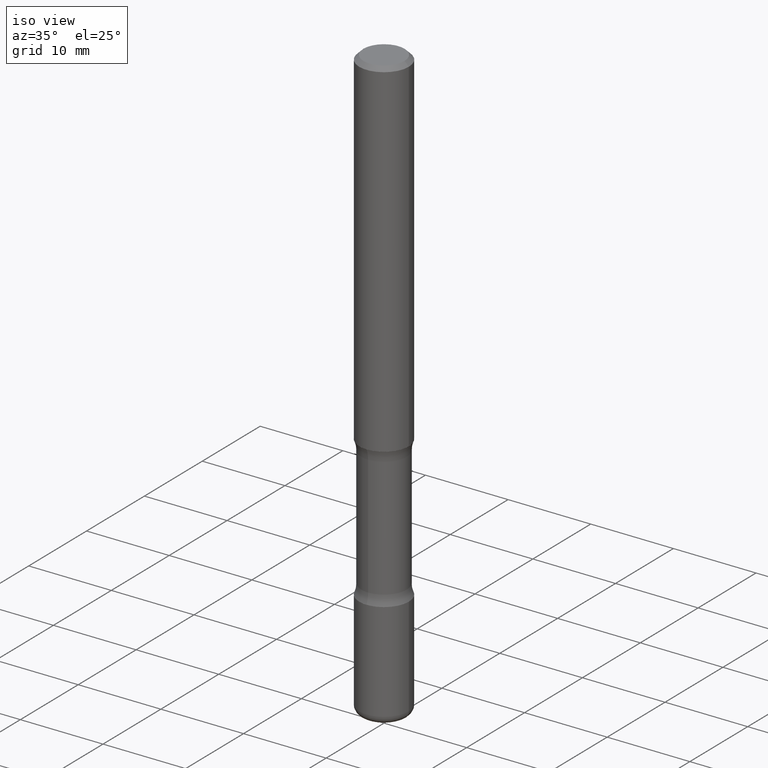
[diagram: clean part render]
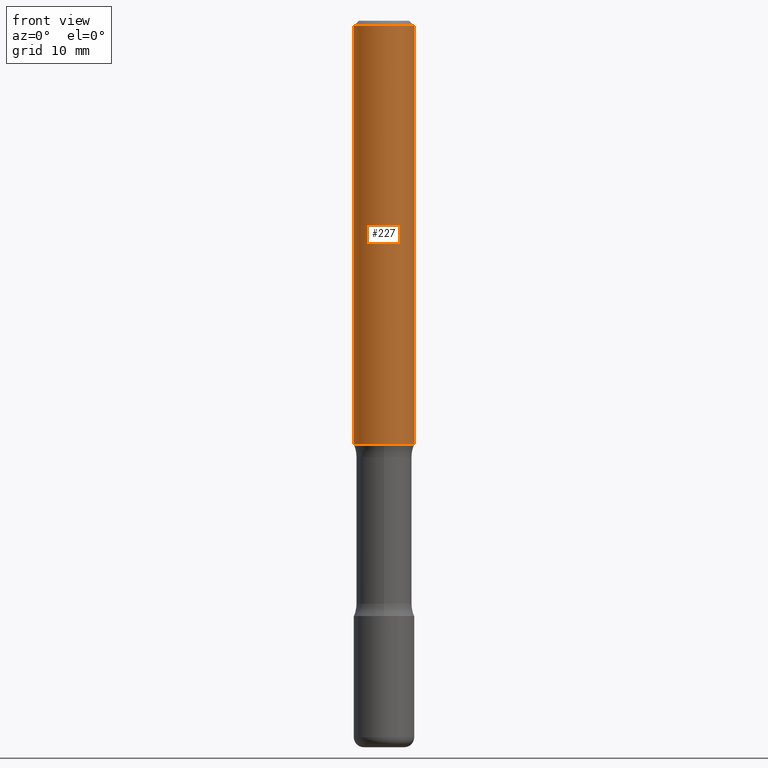
[diagram: tour spotlight — one face highlighted and labeled with its STEP entity id]
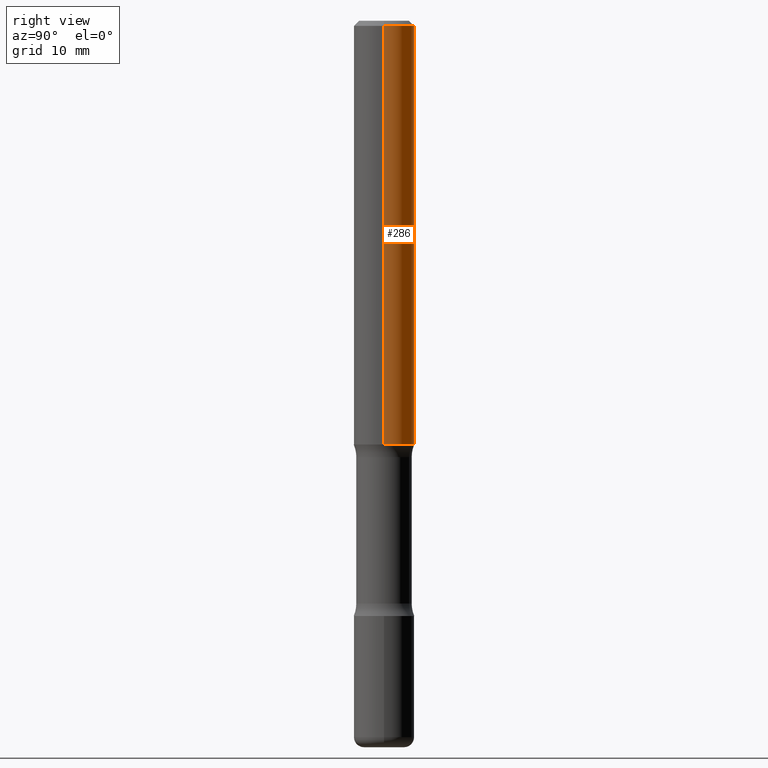
[diagram: tour spotlight — one face highlighted and labeled with its STEP entity id]
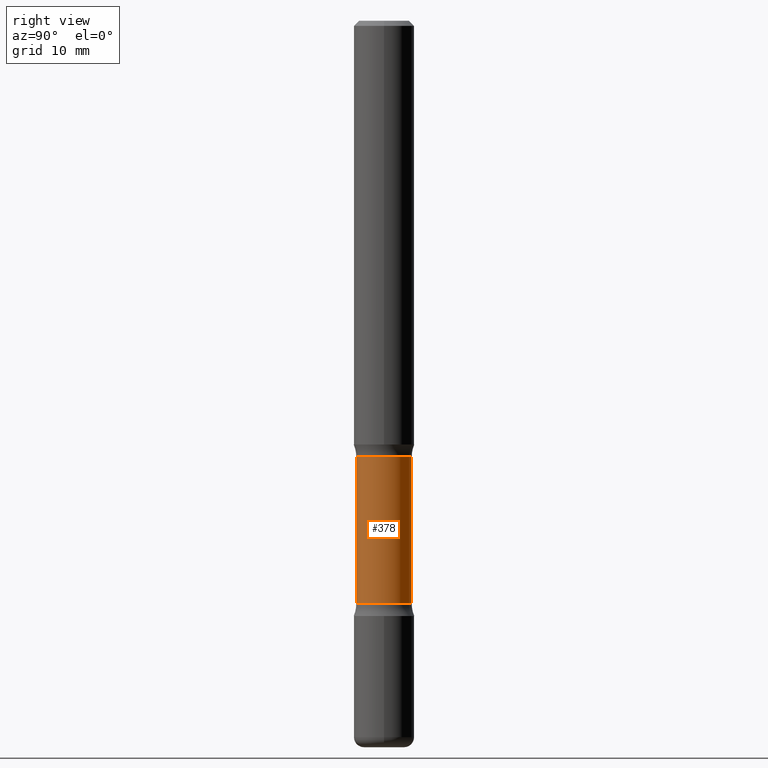
[diagram: tour spotlight — one face highlighted and labeled with its STEP entity id]
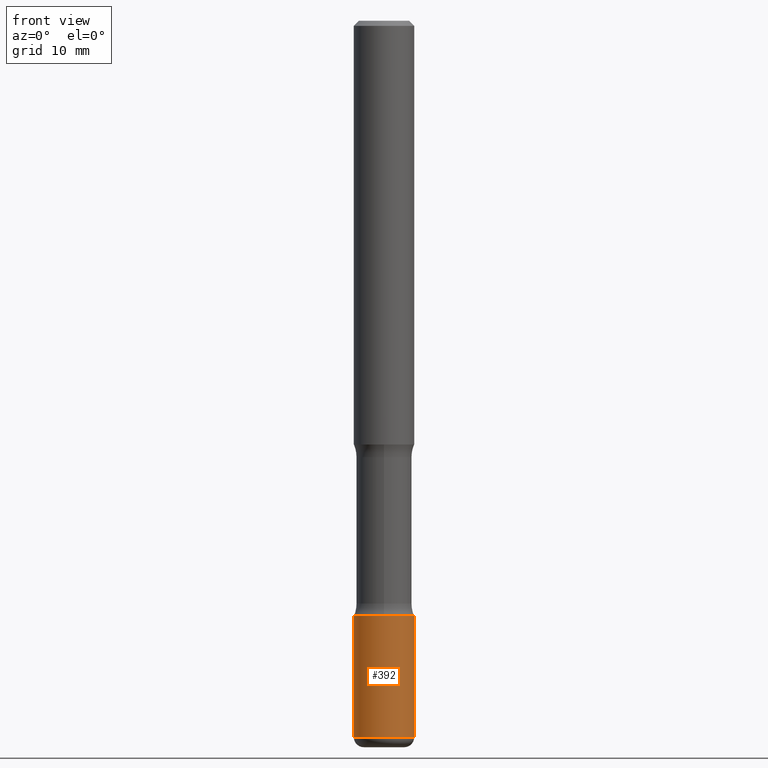
[diagram: tour spotlight — one face highlighted and labeled with its STEP entity id]
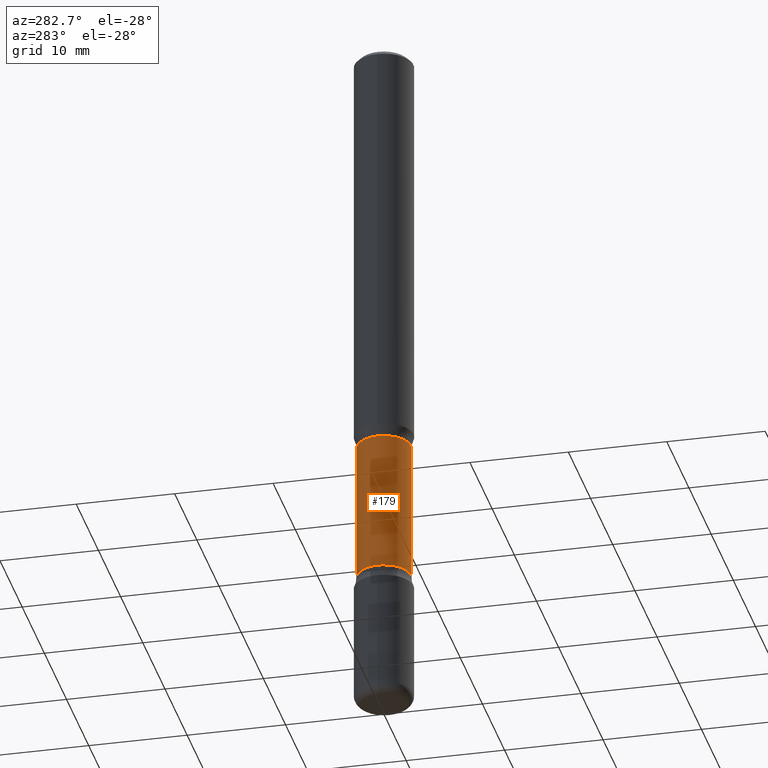
[diagram: tour spotlight — one face highlighted and labeled with its STEP entity id]
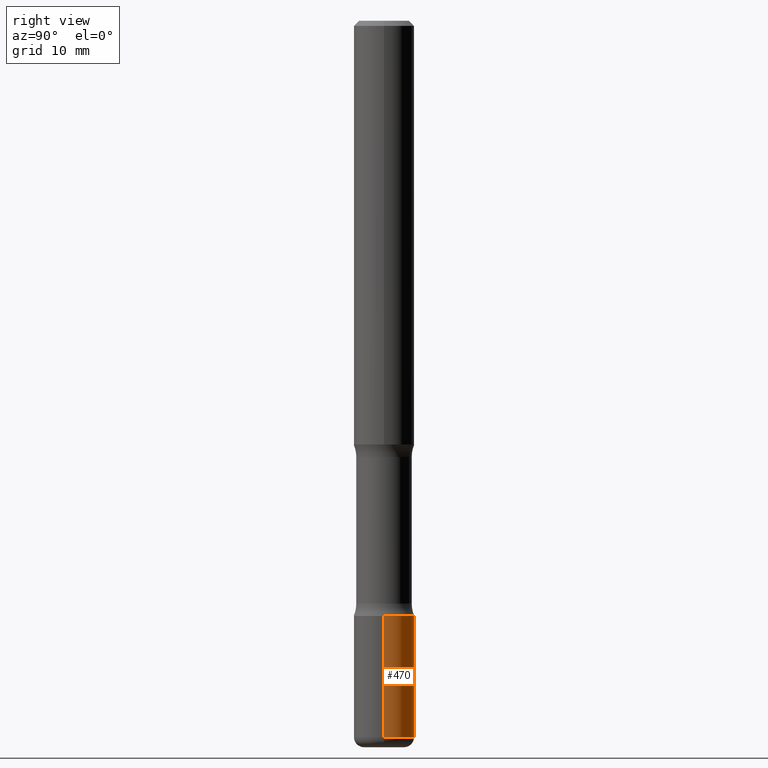
[diagram: tour spotlight — one face highlighted and labeled with its STEP entity id]
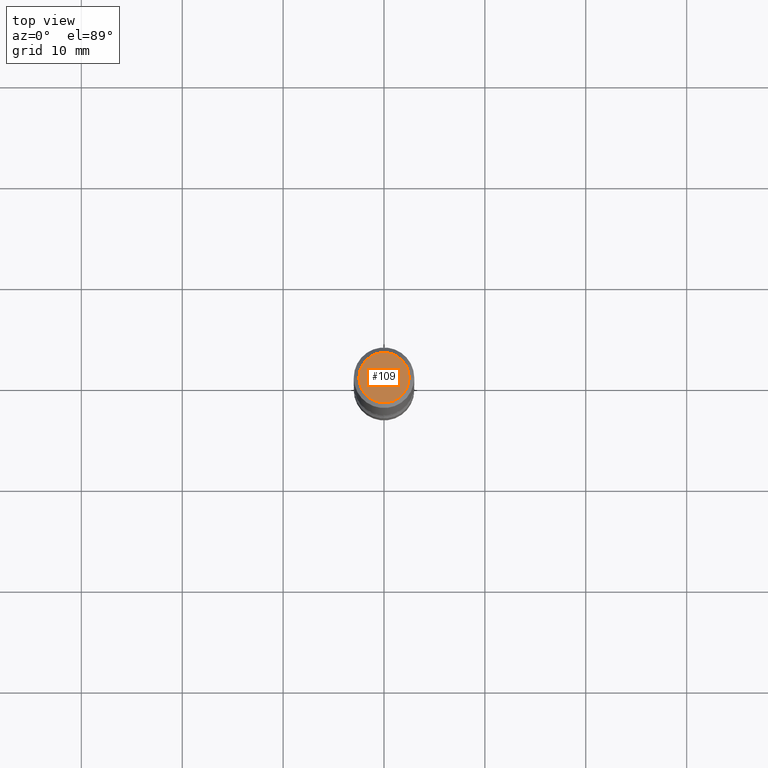
[diagram: tour spotlight — one face highlighted and labeled with its STEP entity id]
A machine part: a face-by-face anatomy tour. The part has 20 B-rep faces; the first image is the clean iso view, then the 7 largest visible faces are spotlighted one at a time (largest first), each with its STEP entity span.

Face 1 — front view, entity #227. In plain terms, the highlighted cylindrical surface (edge-blend (fillet) strip) has radius 2.9997 mm, axis along (-0, 0, 1).
Definition (entity closure, byte-faithful):
#17 = CARTESIAN_POINT ( 'NONE',  ( -0.1181000000000009265, 8.391509709326849024E-16, -5.809262341591088625E-30 ) ) ;
#21 = CARTESIAN_POINT ( 'NONE',  ( -0.1181000000000010514, -2.082346039344310577E-15, -1.653499999999998638 ) ) ;
#36 = ORIENTED_EDGE ( 'NONE', *, *, #353, .F. ) ;
#40 = CARTESIAN_POINT ( 'NONE',  ( 0.1181000000000007877, -8.800544403136861623E-16, -0.02000000000000000042 ) ) ;
#56 = DIRECTION ( 'NONE',  ( -2.445468806185136877E-29, 3.491481338843145188E-15, 1.000000000000000000 ) ) ;
#59 = VECTOR ( 'NONE', #358, 39.37007874015748143 ) ;
#64 = LINE ( 'NONE', #17, #59 ) ;
#72 = DIRECTION ( 'NONE',  ( 1.000000000000000000, -6.982962677686266711E-15, 0.000000000000000000 ) ) ;
#84 = DIRECTION ( 'NONE',  ( 1.000000000000000000, -6.982962677686268288E-15, 0.000000000000000000 ) ) ;
#87 = EDGE_CURVE ( 'NONE', #205, #414, #440, .T. ) ;
#115 = EDGE_CURVE ( 'NONE', #465, #205, #275, .T. ) ;
#130 = DIRECTION ( 'NONE',  ( -2.445468806185136597E-29, 3.491481338843145583E-15, 1.000000000000000000 ) ) ;
#148 = CARTESIAN_POINT ( 'NONE',  ( 4.890937612370273159E-31, -6.982962677686291609E-17, -0.02000000000000000042 ) ) ;
#158 = ORIENTED_EDGE ( 'NONE', *, *, #115, .T. ) ;
#168 = VECTOR ( 'NONE', #56, 39.37007874015748143 ) ;
#188 = CIRCLE ( 'NONE', #463, 0.1181000000000007877 ) ;
#205 = VERTEX_POINT ( 'NONE', #306 ) ;
#212 = CYLINDRICAL_SURFACE ( 'NONE', #284, 0.1181000000000009265 ) ;
#224 = CARTESIAN_POINT ( 'NONE',  ( 0.1181000000000009265, -8.246878922347544749E-16, 5.758764772215045282E-30 ) ) ;
#227 = ADVANCED_FACE ( 'NONE', ( #489 ), #212, .T. ) ;
#243 = ORIENTED_EDGE ( 'NONE', *, *, #87, .T. ) ;
#270 = EDGE_LOOP ( 'NONE', ( #36, #158, #243, #546 ) ) ;
#275 = CIRCLE ( 'NONE', #350, 0.1181000000000010514 ) ;
#276 = DIRECTION ( 'NONE',  ( -2.445468806185136597E-29, 3.491481338843145583E-15, 1.000000000000000000 ) ) ;
#284 = AXIS2_PLACEMENT_3D ( 'NONE', #483, #441, #342 ) ;
#295 = EDGE_CURVE ( 'NONE', #372, #414, #188, .T. ) ;
#306 = CARTESIAN_POINT ( 'NONE',  ( 0.1181000000000010514, -6.597852286011891701E-15, -1.653499999999998638 ) ) ;
#342 = DIRECTION ( 'NONE',  ( 1.000000000000000000, -6.982962677686265922E-15, 4.876176775795935793E-29 ) ) ;
#350 = AXIS2_PLACEMENT_3D ( 'NONE', #466, #130, #84 ) ;
#353 = EDGE_CURVE ( 'NONE', #465, #372, #64, .T. ) ;
#358 = DIRECTION ( 'NONE',  ( -2.445468806185136877E-29, 3.491481338843145188E-15, 1.000000000000000000 ) ) ;
#372 = VERTEX_POINT ( 'NONE', #545 ) ;
#414 = VERTEX_POINT ( 'NONE', #40 ) ;
#440 = LINE ( 'NONE', #224, #168 ) ;
#441 = DIRECTION ( 'NONE',  ( -2.445468806185136597E-29, 3.491481338843145583E-15, 1.000000000000000000 ) ) ;
#463 = AXIS2_PLACEMENT_3D ( 'NONE', #148, #276, #72 ) ;
#465 = VERTEX_POINT ( 'NONE', #21 ) ;
#466 = CARTESIAN_POINT ( 'NONE',  ( 4.043582671027119838E-29, -5.773164393777136338E-15, -1.653499999999998638 ) ) ;
#483 = CARTESIAN_POINT ( 'NONE',  ( 0.000000000000000000, 0.000000000000000000, 0.000000000000000000 ) ) ;
#489 = FACE_OUTER_BOUND ( 'NONE', #270, .T. ) ;
#545 = CARTESIAN_POINT ( 'NONE',  ( -0.1181000000000007877, 7.548582654578905850E-16, -0.02000000000000000042 ) ) ;
#546 = ORIENTED_EDGE ( 'NONE', *, *, #295, .F. ) ;

Face 2 — right view, entity #286. In plain terms, the highlighted cylindrical surface (edge-blend (fillet) strip) has radius 2.9997 mm, axis along (-0, 0, 1).
Definition (entity closure, byte-faithful):
#6 = ORIENTED_EDGE ( 'NONE', *, *, #87, .F. ) ;
#11 = DIRECTION ( 'NONE',  ( 1.000000000000000000, -6.982962677686266711E-15, 0.000000000000000000 ) ) ;
#13 = CARTESIAN_POINT ( 'NONE',  ( 4.043582671027119838E-29, -5.773164393777136338E-15, -1.653499999999998638 ) ) ;
#17 = CARTESIAN_POINT ( 'NONE',  ( -0.1181000000000009265, 8.391509709326849024E-16, -5.809262341591088625E-30 ) ) ;
#19 = CIRCLE ( 'NONE', #377, 0.1181000000000010514 ) ;
#21 = CARTESIAN_POINT ( 'NONE',  ( -0.1181000000000010514, -2.082346039344310577E-15, -1.653499999999998638 ) ) ;
#40 = CARTESIAN_POINT ( 'NONE',  ( 0.1181000000000007877, -8.800544403136861623E-16, -0.02000000000000000042 ) ) ;
#56 = DIRECTION ( 'NONE',  ( -2.445468806185136877E-29, 3.491481338843145188E-15, 1.000000000000000000 ) ) ;
#59 = VECTOR ( 'NONE', #358, 39.37007874015748143 ) ;
#64 = LINE ( 'NONE', #17, #59 ) ;
#87 = EDGE_CURVE ( 'NONE', #205, #414, #440, .T. ) ;
#90 = DIRECTION ( 'NONE',  ( 1.000000000000000000, -6.982962677686268288E-15, 0.000000000000000000 ) ) ;
#100 = CIRCLE ( 'NONE', #197, 0.1181000000000007877 ) ;
#116 = CYLINDRICAL_SURFACE ( 'NONE', #253, 0.1181000000000009265 ) ;
#146 = FACE_OUTER_BOUND ( 'NONE', #211, .T. ) ;
#168 = VECTOR ( 'NONE', #56, 39.37007874015748143 ) ;
#184 = DIRECTION ( 'NONE',  ( -2.445468806185136597E-29, 3.491481338843145583E-15, 1.000000000000000000 ) ) ;
#197 = AXIS2_PLACEMENT_3D ( 'NONE', #220, #184, #11 ) ;
#205 = VERTEX_POINT ( 'NONE', #306 ) ;
#211 = EDGE_LOOP ( 'NONE', ( #474, #507, #344, #6 ) ) ;
#220 = CARTESIAN_POINT ( 'NONE',  ( 4.890937612370273159E-31, -6.982962677686291609E-17, -0.02000000000000000042 ) ) ;
#224 = CARTESIAN_POINT ( 'NONE',  ( 0.1181000000000009265, -8.246878922347544749E-16, 5.758764772215045282E-30 ) ) ;
#231 = EDGE_CURVE ( 'NONE', #414, #372, #100, .T. ) ;
#253 = AXIS2_PLACEMENT_3D ( 'NONE', #449, #317, #455 ) ;
#286 = ADVANCED_FACE ( 'NONE', ( #146 ), #116, .T. ) ;
#306 = CARTESIAN_POINT ( 'NONE',  ( 0.1181000000000010514, -6.597852286011891701E-15, -1.653499999999998638 ) ) ;
#317 = DIRECTION ( 'NONE',  ( -2.445468806185136597E-29, 3.491481338843145583E-15, 1.000000000000000000 ) ) ;
#344 = ORIENTED_EDGE ( 'NONE', *, *, #231, .F. ) ;
#353 = EDGE_CURVE ( 'NONE', #465, #372, #64, .T. ) ;
#358 = DIRECTION ( 'NONE',  ( -2.445468806185136877E-29, 3.491481338843145188E-15, 1.000000000000000000 ) ) ;
#372 = VERTEX_POINT ( 'NONE', #545 ) ;
#377 = AXIS2_PLACEMENT_3D ( 'NONE', #13, #448, #90 ) ;
#414 = VERTEX_POINT ( 'NONE', #40 ) ;
#424 = EDGE_CURVE ( 'NONE', #205, #465, #19, .T. ) ;
#440 = LINE ( 'NONE', #224, #168 ) ;
#448 = DIRECTION ( 'NONE',  ( -2.445468806185136597E-29, 3.491481338843145583E-15, 1.000000000000000000 ) ) ;
#449 = CARTESIAN_POINT ( 'NONE',  ( 0.000000000000000000, 0.000000000000000000, 0.000000000000000000 ) ) ;
#455 = DIRECTION ( 'NONE',  ( 1.000000000000000000, -6.982962677686265922E-15, 4.876176775795935793E-29 ) ) ;
#465 = VERTEX_POINT ( 'NONE', #21 ) ;
#474 = ORIENTED_EDGE ( 'NONE', *, *, #424, .T. ) ;
#507 = ORIENTED_EDGE ( 'NONE', *, *, #353, .T. ) ;
#545 = CARTESIAN_POINT ( 'NONE',  ( -0.1181000000000007877, 7.548582654578905850E-16, -0.02000000000000000042 ) ) ;

Face 3 — right view, entity #378. In plain terms, the highlighted cylindrical surface (edge-blend (fillet) strip) has radius 2.7445 mm, axis along (0, -0, -1).
Definition (entity closure, byte-faithful):
#10 = AXIS2_PLACEMENT_3D ( 'NONE', #500, #410, #189 ) ;
#31 = AXIS2_PLACEMENT_3D ( 'NONE', #533, #103, #58 ) ;
#33 = VECTOR ( 'NONE', #290, 39.37007874015748143 ) ;
#37 = CARTESIAN_POINT ( 'NONE',  ( 7.545091173240708723E-16, 0.1080499999999901678, -2.834599999999999120 ) ) ;
#41 = VECTOR ( 'NONE', #374, 39.37007874015748143 ) ;
#44 = EDGE_CURVE ( 'NONE', #172, #160, #421, .T. ) ;
#50 = AXIS2_PLACEMENT_3D ( 'NONE', #495, #75, #269 ) ;
#58 = DIRECTION ( 'NONE',  ( 6.982962677686265922E-15, 1.000000000000000000, -2.528318365260770920E-15 ) ) ;
#71 = EDGE_CURVE ( 'NONE', #160, #550, #77, .T. ) ;
#75 = DIRECTION ( 'NONE',  ( 2.515355941959131519E-29, -3.391398982686043410E-15, -1.000000000000000000 ) ) ;
#77 = CIRCLE ( 'NONE', #31, 0.1080500000000000071 ) ;
#103 = DIRECTION ( 'NONE',  ( 2.515355941959131519E-29, -3.391398982686043410E-15, -1.000000000000000000 ) ) ;
#122 = ORIENTED_EDGE ( 'NONE', *, *, #467, .T. ) ;
#160 = VERTEX_POINT ( 'NONE', #471 ) ;
#172 = VERTEX_POINT ( 'NONE', #348 ) ;
#182 = CARTESIAN_POINT ( 'NONE',  ( -7.757508110979757408E-16, -0.1080500000000060301, -1.702607000519272828 ) ) ;
#189 = DIRECTION ( 'NONE',  ( 6.982962677686265922E-15, 1.000000000000000000, -2.528318365260770525E-15 ) ) ;
#235 = VERTEX_POINT ( 'NONE', #182 ) ;
#236 = ORIENTED_EDGE ( 'NONE', *, *, #71, .F. ) ;
#269 = DIRECTION ( 'NONE',  ( 6.982962677686265922E-15, 1.000000000000000000, -5.056636730521541050E-15 ) ) ;
#273 = EDGE_LOOP ( 'NONE', ( #282, #122, #236, #554 ) ) ;
#282 = ORIENTED_EDGE ( 'NONE', *, *, #309, .T. ) ;
#290 = DIRECTION ( 'NONE',  ( 2.515355941959131799E-29, -3.391398982686043015E-15, -1.000000000000000000 ) ) ;
#292 = CIRCLE ( 'NONE', #10, 0.1080500000000000210 ) ;
#309 = EDGE_CURVE ( 'NONE', #172, #235, #292, .T. ) ;
#348 = CARTESIAN_POINT ( 'NONE',  ( 7.545091173240424733E-16, 0.1080499999999940119, -1.702607000519273273 ) ) ;
#370 = LINE ( 'NONE', #412, #33 ) ;
#374 = DIRECTION ( 'NONE',  ( 2.515355941959131799E-29, -3.391398982686043015E-15, -1.000000000000000000 ) ) ;
#378 = ADVANCED_FACE ( 'NONE', ( #446 ), #407, .T. ) ;
#407 = CYLINDRICAL_SURFACE ( 'NONE', #50, 0.1080500000000000210 ) ;
#410 = DIRECTION ( 'NONE',  ( 2.515355941959131519E-29, -3.391398982686043410E-15, -1.000000000000000000 ) ) ;
#412 = CARTESIAN_POINT ( 'NONE',  ( -7.412768086591444935E-16, -0.1080500000000098743, -2.834599999999998232 ) ) ;
#421 = LINE ( 'NONE', #37, #41 ) ;
#446 = FACE_OUTER_BOUND ( 'NONE', #273, .T. ) ;
#467 = EDGE_CURVE ( 'NONE', #235, #550, #370, .T. ) ;
#471 = CARTESIAN_POINT ( 'NONE',  ( 7.545091173240566728E-16, 0.1080499999999920691, -2.273692999480724897 ) ) ;
#495 = CARTESIAN_POINT ( 'NONE',  ( 6.967694114101516369E-29, -9.845730853203571031E-15, -2.834599999999998676 ) ) ;
#500 = CARTESIAN_POINT ( 'NONE',  ( 4.120328796601531988E-29, -6.006690946356916109E-15, -1.702607000519273051 ) ) ;
#533 = CARTESIAN_POINT ( 'NONE',  ( 5.556813357458885632E-29, -7.943471422261023875E-15, -2.273692999480724453 ) ) ;
#550 = VERTEX_POINT ( 'NONE', #556 ) ;
#554 = ORIENTED_EDGE ( 'NONE', *, *, #44, .F. ) ;
#556 = CARTESIAN_POINT ( 'NONE',  ( -7.757508110979601608E-16, -0.1080500000000079452, -2.273692999480724009 ) ) ;

Face 4 — front view, entity #392. In plain terms, the highlighted cylindrical surface (edge-blend (fillet) strip) has radius 2.9997 mm, axis along (-0, 0, 1).
Definition (entity closure, byte-faithful):
#1 = ORIENTED_EDGE ( 'NONE', *, *, #16, .T. ) ;
#16 = EDGE_CURVE ( 'NONE', #522, #451, #472, .T. ) ;
#22 = CYLINDRICAL_SURFACE ( 'NONE', #518, 0.1181000000000001077 ) ;
#30 = DIRECTION ( 'NONE',  ( -2.445468806185136597E-29, 3.491481338843145583E-15, 1.000000000000000000 ) ) ;
#47 = DIRECTION ( 'NONE',  ( -2.445468806185136877E-29, 3.491481338843145188E-15, 1.000000000000000000 ) ) ;
#53 = ORIENTED_EDGE ( 'NONE', *, *, #373, .T. ) ;
#61 = LINE ( 'NONE', #314, #367 ) ;
#66 = AXIS2_PLACEMENT_3D ( 'NONE', #509, #123, #297 ) ;
#88 = VECTOR ( 'NONE', #47, 39.37007874015748143 ) ;
#98 = VERTEX_POINT ( 'NONE', #494 ) ;
#123 = DIRECTION ( 'NONE',  ( -2.445468806185136597E-29, 3.491481338843145583E-15, 1.000000000000000000 ) ) ;
#137 = VERTEX_POINT ( 'NONE', #288 ) ;
#151 = DIRECTION ( 'NONE',  ( -2.445468806185136877E-29, 3.491481338843145188E-15, 1.000000000000000000 ) ) ;
#153 = EDGE_LOOP ( 'NONE', ( #459, #1, #53, #496 ) ) ;
#159 = CARTESIAN_POINT ( 'NONE',  ( -0.1181000000000003020, -8.920237667401677951E-15, -2.795199999999999019 ) ) ;
#225 = DIRECTION ( 'NONE',  ( 1.000000000000000000, -6.982962677686269077E-15, 0.000000000000000000 ) ) ;
#232 = CIRCLE ( 'NONE', #444, 0.1181000000000000660 ) ;
#238 = FACE_OUTER_BOUND ( 'NONE', #153, .T. ) ;
#249 = EDGE_CURVE ( 'NONE', #522, #98, #430, .T. ) ;
#279 = DIRECTION ( 'NONE',  ( 1.000000000000000000, -6.982962677686266711E-15, 4.876176775795935793E-29 ) ) ;
#288 = CARTESIAN_POINT ( 'NONE',  ( 0.1181000000000000660, -8.934700746099602364E-15, -2.322799999999998644 ) ) ;
#297 = DIRECTION ( 'NONE',  ( 1.000000000000000000, -6.982962677686265133E-15, 0.000000000000000000 ) ) ;
#310 = DIRECTION ( 'NONE',  ( -2.445468806185136597E-29, 3.491481338843145583E-15, 1.000000000000000000 ) ) ;
#314 = CARTESIAN_POINT ( 'NONE',  ( 0.1181000000000001077, -8.246878922347488542E-16, 5.758764772215005345E-30 ) ) ;
#324 = CARTESIAN_POINT ( 'NONE',  ( 0.000000000000000000, 0.000000000000000000, 0.000000000000000000 ) ) ;
#367 = VECTOR ( 'NONE', #151, 39.37007874015748143 ) ;
#368 = CARTESIAN_POINT ( 'NONE',  ( 5.680334943006831795E-29, -8.110012853864854101E-15, -2.322799999999998644 ) ) ;
#373 = EDGE_CURVE ( 'NONE', #451, #137, #61, .T. ) ;
#392 = ADVANCED_FACE ( 'NONE', ( #238 ), #22, .T. ) ;
#395 = EDGE_CURVE ( 'NONE', #98, #137, #232, .T. ) ;
#430 = LINE ( 'NONE', #442, #88 ) ;
#436 = CARTESIAN_POINT ( 'NONE',  ( 0.1181000000000003020, -1.058407653056910836E-14, -2.795199999999999019 ) ) ;
#442 = CARTESIAN_POINT ( 'NONE',  ( -0.1181000000000001077, 8.391509709326790846E-16, -5.809262341591049389E-30 ) ) ;
#444 = AXIS2_PLACEMENT_3D ( 'NONE', #368, #310, #225 ) ;
#451 = VERTEX_POINT ( 'NONE', #436 ) ;
#459 = ORIENTED_EDGE ( 'NONE', *, *, #249, .F. ) ;
#472 = CIRCLE ( 'NONE', #66, 0.1181000000000001354 ) ;
#494 = CARTESIAN_POINT ( 'NONE',  ( -0.1181000000000000660, -8.095549775166928111E-15, -2.322799999999998644 ) ) ;
#496 = ORIENTED_EDGE ( 'NONE', *, *, #395, .F. ) ;
#509 = CARTESIAN_POINT ( 'NONE',  ( 6.835574407048691801E-29, -9.759388638334358515E-15, -2.795199999999999019 ) ) ;
#518 = AXIS2_PLACEMENT_3D ( 'NONE', #324, #30, #279 ) ;
#522 = VERTEX_POINT ( 'NONE', #159 ) ;

Face 5 — auxiliary view, entity #179. In plain terms, the highlighted cylindrical surface (edge-blend (fillet) strip) has radius 2.7445 mm, axis along (0, -0, -1).
Definition (entity closure, byte-faithful):
#2 = AXIS2_PLACEMENT_3D ( 'NONE', #12, #393, #352 ) ;
#12 = CARTESIAN_POINT ( 'NONE',  ( 6.967694114101516369E-29, -9.845730853203571031E-15, -2.834599999999998676 ) ) ;
#32 = ORIENTED_EDGE ( 'NONE', *, *, #252, .F. ) ;
#33 = VECTOR ( 'NONE', #290, 39.37007874015748143 ) ;
#37 = CARTESIAN_POINT ( 'NONE',  ( 7.545091173240708723E-16, 0.1080499999999901678, -2.834599999999999120 ) ) ;
#41 = VECTOR ( 'NONE', #374, 39.37007874015748143 ) ;
#44 = EDGE_CURVE ( 'NONE', #172, #160, #421, .T. ) ;
#92 = DIRECTION ( 'NONE',  ( 6.982962677686265922E-15, 1.000000000000000000, -2.528318365260770525E-15 ) ) ;
#94 = ORIENTED_EDGE ( 'NONE', *, *, #102, .T. ) ;
#102 = EDGE_CURVE ( 'NONE', #235, #172, #126, .T. ) ;
#106 = CARTESIAN_POINT ( 'NONE',  ( 4.120328796601531988E-29, -6.006690946356916109E-15, -1.702607000519273051 ) ) ;
#108 = DIRECTION ( 'NONE',  ( 2.515355941959131519E-29, -3.391398982686043410E-15, -1.000000000000000000 ) ) ;
#126 = CIRCLE ( 'NONE', #173, 0.1080500000000000210 ) ;
#160 = VERTEX_POINT ( 'NONE', #471 ) ;
#162 = CIRCLE ( 'NONE', #405, 0.1080500000000000071 ) ;
#172 = VERTEX_POINT ( 'NONE', #348 ) ;
#173 = AXIS2_PLACEMENT_3D ( 'NONE', #106, #473, #92 ) ;
#179 = ADVANCED_FACE ( 'NONE', ( #219 ), #261, .T. ) ;
#182 = CARTESIAN_POINT ( 'NONE',  ( -7.757508110979757408E-16, -0.1080500000000060301, -1.702607000519272828 ) ) ;
#187 = EDGE_LOOP ( 'NONE', ( #341, #94, #355, #32 ) ) ;
#219 = FACE_OUTER_BOUND ( 'NONE', #187, .T. ) ;
#235 = VERTEX_POINT ( 'NONE', #182 ) ;
#252 = EDGE_CURVE ( 'NONE', #550, #160, #162, .T. ) ;
#261 = CYLINDRICAL_SURFACE ( 'NONE', #2, 0.1080500000000000210 ) ;
#272 = CARTESIAN_POINT ( 'NONE',  ( 5.556813357458885632E-29, -7.943471422261023875E-15, -2.273692999480724453 ) ) ;
#290 = DIRECTION ( 'NONE',  ( 2.515355941959131799E-29, -3.391398982686043015E-15, -1.000000000000000000 ) ) ;
#341 = ORIENTED_EDGE ( 'NONE', *, *, #467, .F. ) ;
#348 = CARTESIAN_POINT ( 'NONE',  ( 7.545091173240424733E-16, 0.1080499999999940119, -1.702607000519273273 ) ) ;
#352 = DIRECTION ( 'NONE',  ( 6.982962677686265922E-15, 1.000000000000000000, -5.056636730521541050E-15 ) ) ;
#355 = ORIENTED_EDGE ( 'NONE', *, *, #44, .T. ) ;
#370 = LINE ( 'NONE', #412, #33 ) ;
#374 = DIRECTION ( 'NONE',  ( 2.515355941959131799E-29, -3.391398982686043015E-15, -1.000000000000000000 ) ) ;
#393 = DIRECTION ( 'NONE',  ( 2.515355941959131519E-29, -3.391398982686043410E-15, -1.000000000000000000 ) ) ;
#405 = AXIS2_PLACEMENT_3D ( 'NONE', #272, #108, #541 ) ;
#412 = CARTESIAN_POINT ( 'NONE',  ( -7.412768086591444935E-16, -0.1080500000000098743, -2.834599999999998232 ) ) ;
#421 = LINE ( 'NONE', #37, #41 ) ;
#467 = EDGE_CURVE ( 'NONE', #235, #550, #370, .T. ) ;
#471 = CARTESIAN_POINT ( 'NONE',  ( 7.545091173240566728E-16, 0.1080499999999920691, -2.273692999480724897 ) ) ;
#473 = DIRECTION ( 'NONE',  ( 2.515355941959131519E-29, -3.391398982686043410E-15, -1.000000000000000000 ) ) ;
#541 = DIRECTION ( 'NONE',  ( 6.982962677686265922E-15, 1.000000000000000000, -2.528318365260770920E-15 ) ) ;
#550 = VERTEX_POINT ( 'NONE', #556 ) ;
#556 = CARTESIAN_POINT ( 'NONE',  ( -7.757508110979601608E-16, -0.1080500000000079452, -2.273692999480724009 ) ) ;

Face 6 — right view, entity #470. In plain terms, the highlighted cylindrical surface (edge-blend (fillet) strip) has radius 2.9997 mm, axis along (-0, 0, 1).
Definition (entity closure, byte-faithful):
#18 = ORIENTED_EDGE ( 'NONE', *, *, #249, .T. ) ;
#47 = DIRECTION ( 'NONE',  ( -2.445468806185136877E-29, 3.491481338843145188E-15, 1.000000000000000000 ) ) ;
#54 = DIRECTION ( 'NONE',  ( 1.000000000000000000, -6.982962677686269077E-15, 0.000000000000000000 ) ) ;
#61 = LINE ( 'NONE', #314, #367 ) ;
#88 = VECTOR ( 'NONE', #47, 39.37007874015748143 ) ;
#98 = VERTEX_POINT ( 'NONE', #494 ) ;
#137 = VERTEX_POINT ( 'NONE', #288 ) ;
#147 = ORIENTED_EDGE ( 'NONE', *, *, #454, .T. ) ;
#151 = DIRECTION ( 'NONE',  ( -2.445468806185136877E-29, 3.491481338843145188E-15, 1.000000000000000000 ) ) ;
#152 = CIRCLE ( 'NONE', #557, 0.1181000000000000660 ) ;
#159 = CARTESIAN_POINT ( 'NONE',  ( -0.1181000000000003020, -8.920237667401677951E-15, -2.795199999999999019 ) ) ;
#165 = EDGE_CURVE ( 'NONE', #137, #98, #152, .T. ) ;
#199 = CARTESIAN_POINT ( 'NONE',  ( 5.680334943006831795E-29, -8.110012853864854101E-15, -2.322799999999998644 ) ) ;
#216 = ORIENTED_EDGE ( 'NONE', *, *, #373, .F. ) ;
#230 = DIRECTION ( 'NONE',  ( -2.445468806185136597E-29, 3.491481338843145583E-15, 1.000000000000000000 ) ) ;
#241 = FACE_OUTER_BOUND ( 'NONE', #257, .T. ) ;
#249 = EDGE_CURVE ( 'NONE', #522, #98, #430, .T. ) ;
#257 = EDGE_LOOP ( 'NONE', ( #147, #18, #329, #216 ) ) ;
#267 = AXIS2_PLACEMENT_3D ( 'NONE', #394, #230, #479 ) ;
#288 = CARTESIAN_POINT ( 'NONE',  ( 0.1181000000000000660, -8.934700746099602364E-15, -2.322799999999998644 ) ) ;
#314 = CARTESIAN_POINT ( 'NONE',  ( 0.1181000000000001077, -8.246878922347488542E-16, 5.758764772215005345E-30 ) ) ;
#321 = DIRECTION ( 'NONE',  ( -2.445468806185136597E-29, 3.491481338843145583E-15, 1.000000000000000000 ) ) ;
#329 = ORIENTED_EDGE ( 'NONE', *, *, #165, .F. ) ;
#367 = VECTOR ( 'NONE', #151, 39.37007874015748143 ) ;
#373 = EDGE_CURVE ( 'NONE', #451, #137, #61, .T. ) ;
#376 = CARTESIAN_POINT ( 'NONE',  ( 0.000000000000000000, 0.000000000000000000, 0.000000000000000000 ) ) ;
#394 = CARTESIAN_POINT ( 'NONE',  ( 6.835574407048691801E-29, -9.759388638334358515E-15, -2.795199999999999019 ) ) ;
#416 = AXIS2_PLACEMENT_3D ( 'NONE', #376, #321, #502 ) ;
#430 = LINE ( 'NONE', #442, #88 ) ;
#436 = CARTESIAN_POINT ( 'NONE',  ( 0.1181000000000003020, -1.058407653056910836E-14, -2.795199999999999019 ) ) ;
#438 = DIRECTION ( 'NONE',  ( -2.445468806185136597E-29, 3.491481338843145583E-15, 1.000000000000000000 ) ) ;
#442 = CARTESIAN_POINT ( 'NONE',  ( -0.1181000000000001077, 8.391509709326790846E-16, -5.809262341591049389E-30 ) ) ;
#451 = VERTEX_POINT ( 'NONE', #436 ) ;
#454 = EDGE_CURVE ( 'NONE', #451, #522, #555, .T. ) ;
#470 = ADVANCED_FACE ( 'NONE', ( #241 ), #553, .T. ) ;
#479 = DIRECTION ( 'NONE',  ( 1.000000000000000000, -6.982962677686265133E-15, 0.000000000000000000 ) ) ;
#494 = CARTESIAN_POINT ( 'NONE',  ( -0.1181000000000000660, -8.095549775166928111E-15, -2.322799999999998644 ) ) ;
#502 = DIRECTION ( 'NONE',  ( 1.000000000000000000, -6.982962677686266711E-15, 4.876176775795935793E-29 ) ) ;
#522 = VERTEX_POINT ( 'NONE', #159 ) ;
#553 = CYLINDRICAL_SURFACE ( 'NONE', #416, 0.1181000000000001077 ) ;
#555 = CIRCLE ( 'NONE', #267, 0.1181000000000001354 ) ;
#557 = AXIS2_PLACEMENT_3D ( 'NONE', #199, #438, #54 ) ;

Face 7 — top view, entity #109. In plain terms, the highlighted planar face has unit normal (0, -0, -1).
Definition (entity closure, byte-faithful):
#4 = FACE_OUTER_BOUND ( 'NONE', #400, .T. ) ;
#27 = VERTEX_POINT ( 'NONE', #99 ) ;
#43 = PLANE ( 'NONE',  #330 ) ;
#96 = DIRECTION ( 'NONE',  ( 2.438088387897960049E-29, -3.491481338843145188E-15, -1.000000000000000000 ) ) ;
#99 = CARTESIAN_POINT ( 'NONE',  ( -0.09810000000000086706, 7.199434520694596262E-16, -4.695363739110943904E-17 ) ) ;
#109 = ADVANCED_FACE ( 'NONE', ( #4 ), #43, .F. ) ;
#125 = AXIS2_PLACEMENT_3D ( 'NONE', #490, #268, #246 ) ;
#155 = VERTEX_POINT ( 'NONE', #519 ) ;
#200 = AXIS2_PLACEMENT_3D ( 'NONE', #409, #366, #549 ) ;
#246 = DIRECTION ( 'NONE',  ( 1.000000000000000000, -6.982962677686265133E-15, 4.877161320636724192E-29 ) ) ;
#255 = CARTESIAN_POINT ( 'NONE',  ( 6.850286386810286674E-16, 0.09810000000000086706, -3.659911380360678144E-16 ) ) ;
#268 = DIRECTION ( 'NONE',  ( -2.445468806185136597E-29, 3.491481338843145583E-15, 1.000000000000000000 ) ) ;
#289 = DIRECTION ( 'NONE',  ( -1.000000000000000000, 6.982962677686265922E-15, -4.876176775795935793E-29 ) ) ;
#318 = ORIENTED_EDGE ( 'NONE', *, *, #548, .T. ) ;
#330 = AXIS2_PLACEMENT_3D ( 'NONE', #255, #96, #289 ) ;
#366 = DIRECTION ( 'NONE',  ( -2.445468806185136597E-29, 3.491481338843145583E-15, 1.000000000000000000 ) ) ;
#386 = CIRCLE ( 'NONE', #200, 0.09810000000000086706 ) ;
#400 = EDGE_LOOP ( 'NONE', ( #318, #408 ) ) ;
#406 = EDGE_CURVE ( 'NONE', #155, #27, #484, .T. ) ;
#408 = ORIENTED_EDGE ( 'NONE', *, *, #406, .T. ) ;
#409 = CARTESIAN_POINT ( 'NONE',  ( 1.148236555768741665E-45, -1.639377487418492057E-31, -4.695363739110452099E-17 ) ) ;
#484 = CIRCLE ( 'NONE', #125, 0.09810000000000086706 ) ;
#490 = CARTESIAN_POINT ( 'NONE',  ( 1.148236555768741665E-45, -1.639377487418492057E-31, -4.695363739110452099E-17 ) ) ;
#519 = CARTESIAN_POINT ( 'NONE',  ( 0.09810000000000086706, -7.765346469475396748E-16, -4.695363739109941188E-17 ) ) ;
#548 = EDGE_CURVE ( 'NONE', #27, #155, #386, .T. ) ;
#549 = DIRECTION ( 'NONE',  ( 1.000000000000000000, -6.982962677686265133E-15, 4.877161320636724192E-29 ) ) ;